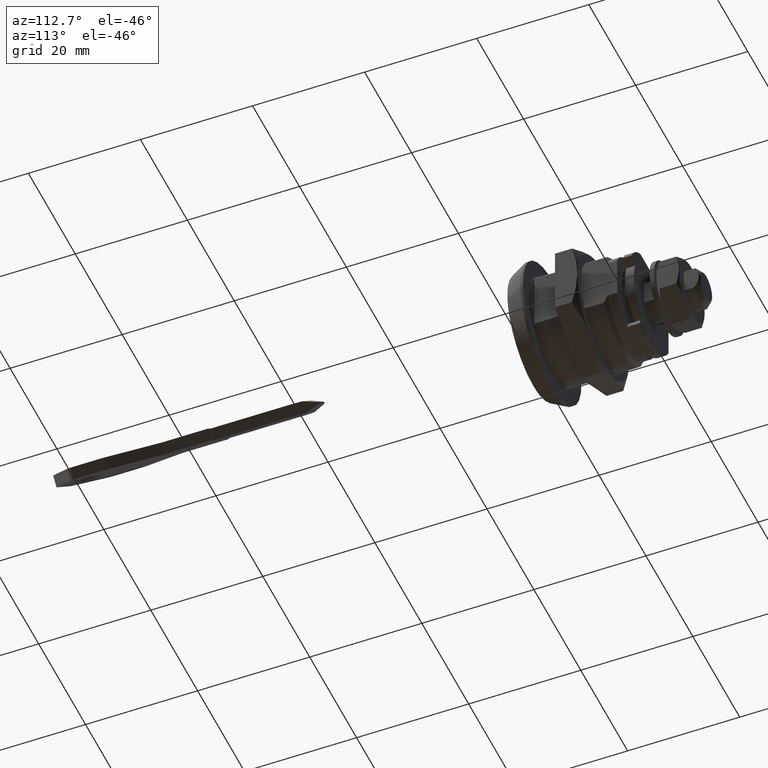
[diagram: clean part render]
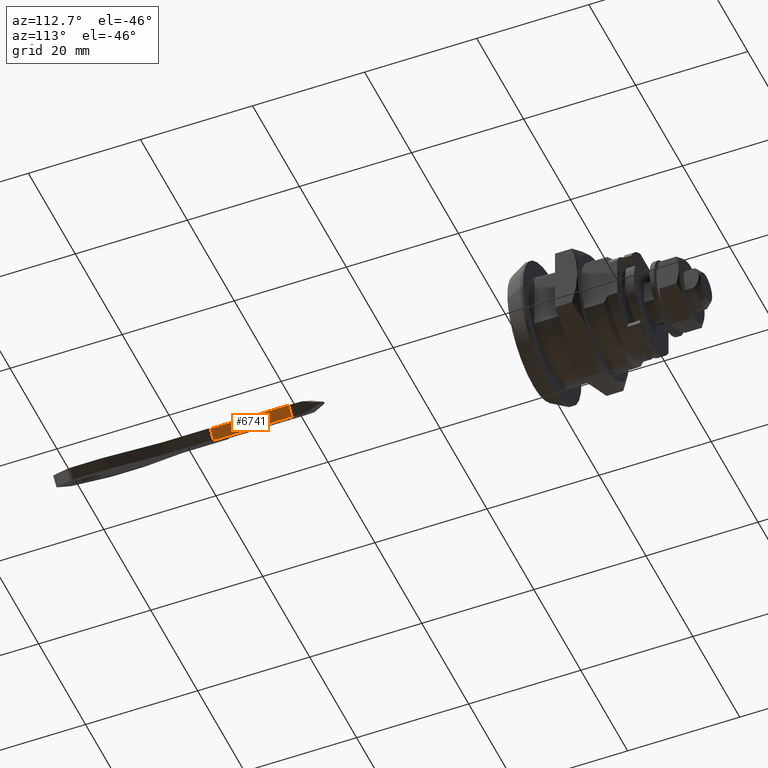
[diagram: same view with one face highlighted and labeled with its STEP entity id]
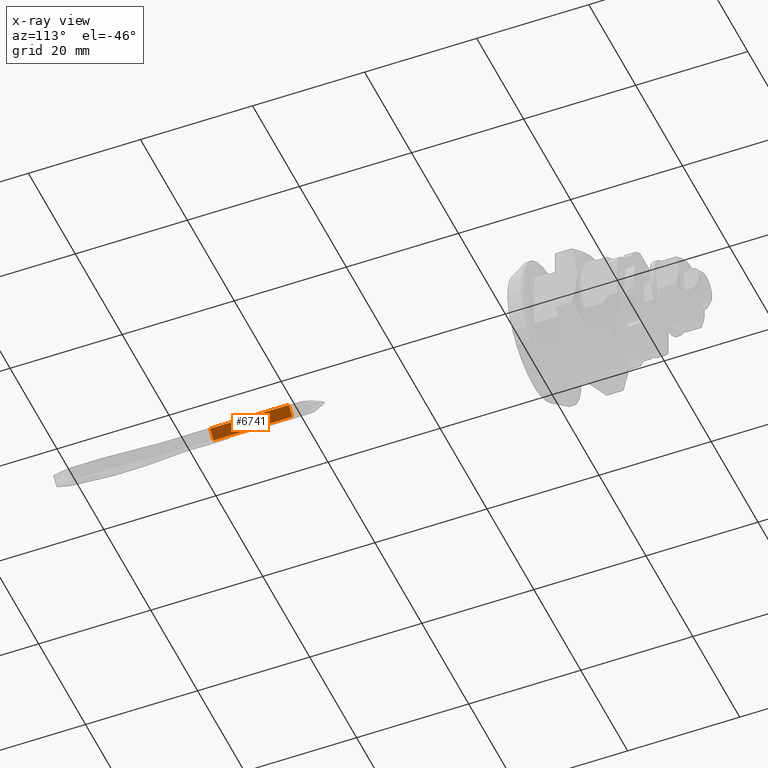
[diagram: x-ray of the same camera — body ghosted, the highlighted face saturated]
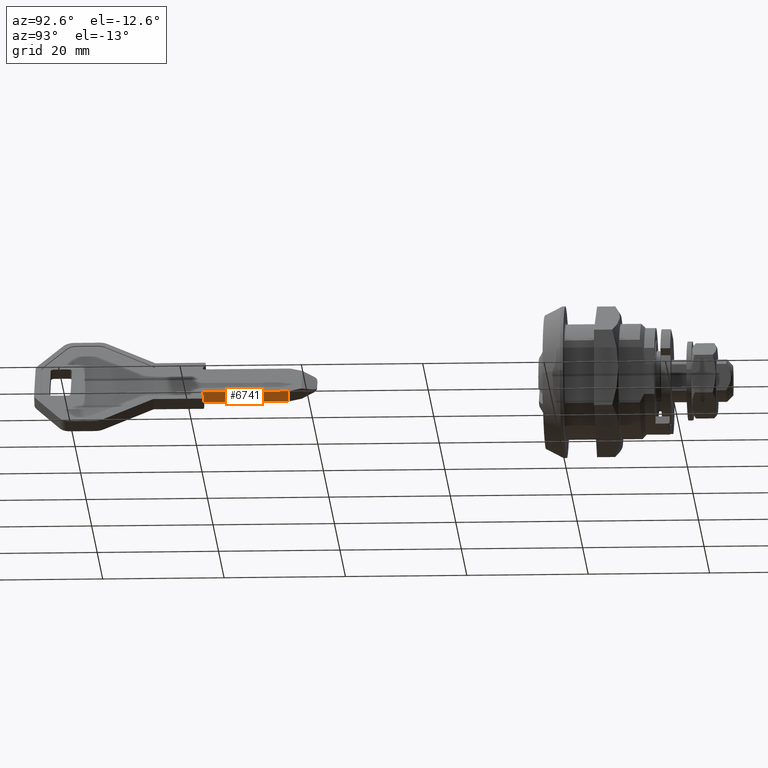
[diagram: same view with one face highlighted and labeled with its STEP entity id]
A machine part, auxiliary view. The second image highlights one B-rep face of the part: STEP entity #6741.
The next image is the same camera in x-ray: the body ghosted, the highlighted face saturated — about 0% of this face is hidden behind the body in this view.
A second angle (auxiliary view) of the same face is appended — the face is thin or edge-on in the first view.
In plain terms, the highlighted face is a freeform B-spline surface patch.
Its self-contained STEP definition (entity closure, byte-faithful):
#6675=CARTESIAN_POINT('',(1.732411584258049,-45.700575424545796,-3.146625122427912));
#6676=VERTEX_POINT('',#6675);
#6691=CARTESIAN_POINT('',(3.146625122427909,-45.700575424545796,-1.732411584258051));
#6692=VERTEX_POINT('',#6691);
#6706=CARTESIAN_POINT('',(3.146625122427909,-45.700575424545796,-1.732411584258051));
#6707=CARTESIAN_POINT('',(1.732411584258049,-45.700575424545796,-3.146625122427912));
#6708=QUASI_UNIFORM_CURVE('',1,(#6706,#6707),.UNSPECIFIED.,.F.,.U.);
#6709=EDGE_CURVE('',#6692,#6676,#6708,.T.);
#6714=CARTESIAN_POINT('',(1.661771620767512,-45.000405892388990,-3.217265085918505));
#6715=CARTESIAN_POINT('',(1.661771620767511,-60.418153927779322,-3.217265085918505));
#6716=CARTESIAN_POINT('',(3.217265123850665,-45.000405892388983,-1.661771582835352));
#6717=CARTESIAN_POINT('',(3.217265123850664,-60.418153927779322,-1.661771582835352));
#6718=B_SPLINE_SURFACE_WITH_KNOTS('',1,1,((#6714,#6716),(#6715,#6717)),.UNSPECIFIED.,.F.,.F.,.U.,(2,2),(2,2),(0.0,15.417748035390330),(0.0,2.199800045891404),.UNSPECIFIED.);
#6719=CARTESIAN_POINT('',(1.732411584229732,-59.717984019646302,-3.146625122399596));
#6720=VERTEX_POINT('',#6719);
#6721=CARTESIAN_POINT('',(1.732411584229732,-59.717984019646302,-3.146625122399596));
#6722=CARTESIAN_POINT('',(1.732411584258049,-45.700575424545796,-3.146625122427912));
#6723=QUASI_UNIFORM_CURVE('',1,(#6721,#6722),.UNSPECIFIED.,.F.,.U.);
#6724=EDGE_CURVE('',#6720,#6676,#6723,.T.);
#6725=ORIENTED_EDGE('',*,*,#6724,.T.);
#6726=ORIENTED_EDGE('',*,*,#6709,.F.);
#6727=CARTESIAN_POINT('',(3.146625122399593,-59.717984019646302,-1.732411584229735));
#6728=VERTEX_POINT('',#6727);
#6729=CARTESIAN_POINT('',(3.146625122399593,-59.717984019646302,-1.732411584229735));
#6730=CARTESIAN_POINT('',(3.146625122427909,-45.700575424545796,-1.732411584258051));
#6731=QUASI_UNIFORM_CURVE('',1,(#6729,#6730),.UNSPECIFIED.,.F.,.U.);
#6732=EDGE_CURVE('',#6728,#6692,#6731,.T.);
#6733=ORIENTED_EDGE('',*,*,#6732,.F.);
#6734=CARTESIAN_POINT('',(3.146625122399593,-59.717984019646302,-1.732411584229735));
#6735=CARTESIAN_POINT('',(1.732411584229732,-59.717984019646302,-3.146625122399596));
#6736=QUASI_UNIFORM_CURVE('',1,(#6734,#6735),.UNSPECIFIED.,.F.,.U.);
#6737=EDGE_CURVE('',#6728,#6720,#6736,.T.);
#6738=ORIENTED_EDGE('',*,*,#6737,.T.);
#6739=EDGE_LOOP('',(#6725,#6726,#6733,#6738));
#6740=FACE_OUTER_BOUND('',#6739,.T.);
#6741=ADVANCED_FACE('',(#6740),#6718,.F.);